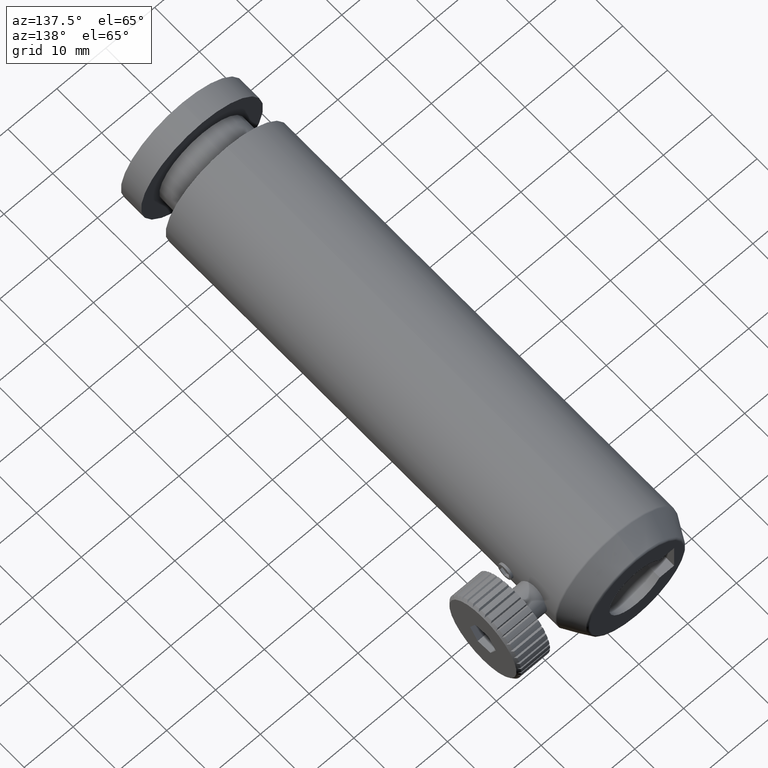
[diagram: clean part render]
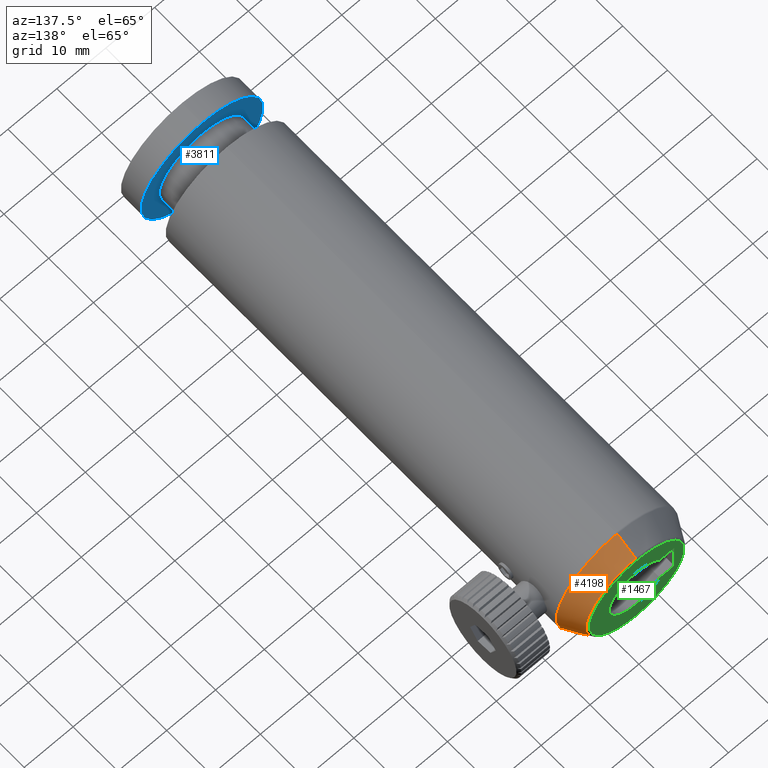
[diagram: same view with three faces highlighted in distinct colors, each labeled with its STEP entity id]
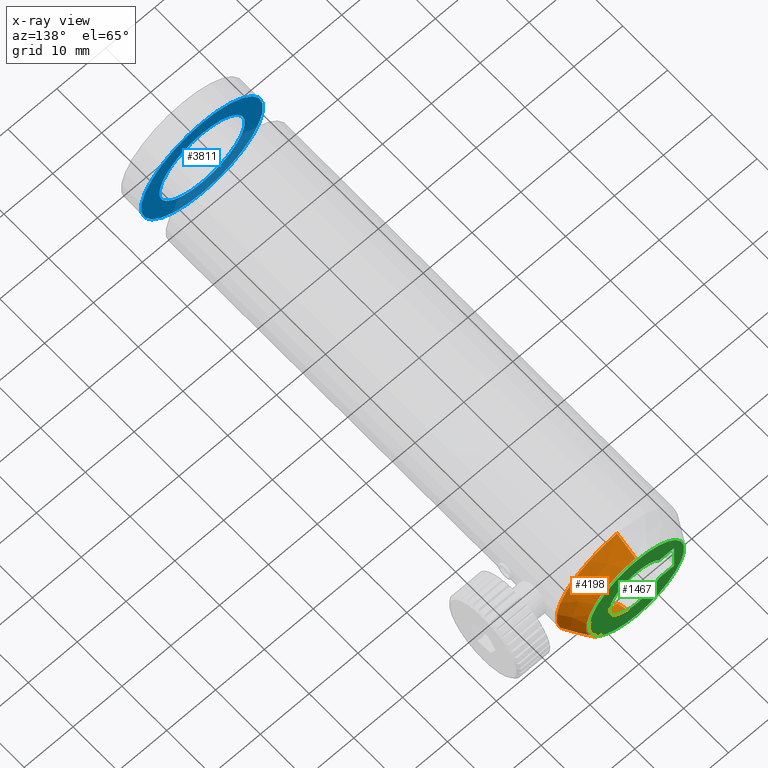
[diagram: x-ray of the same camera — body ghosted, the three highlighted faces saturated]
A machine part, auxiliary view with three faces highlighted in distinct colors.
The next image is the same camera in x-ray (body ghosted, the three faces saturated) — at least one of them is partly hidden behind the body in this view.
Their STEP definitions:

[orange] entity #4198 — the highlighted conical surface has half-angle 29.055 deg.
#25 = VERTEX_POINT ( 'NONE', #467 ) ;
#282 = CIRCLE ( 'NONE', #2136, 10.14287696356149300 ) ;
#289 = DIRECTION ( 'NONE',  ( 0.0000000000000000000, 0.0000000000000000000, -1.000000000000000000 ) ) ;
#369 = DIRECTION ( 'NONE',  ( 0.0000000000000000000, -0.8741572761215180600, -0.4856429311786675800 ) ) ;
#467 = CARTESIAN_POINT ( 'NONE',  ( -3.891022268973183300, 85.02920940597950100, 9.142876963561493000 ) ) ;
#726 = VERTEX_POINT ( 'NONE', #3298 ) ;
#873 = ORIENTED_EDGE ( 'NONE', *, *, #1209, .F. ) ;
#1003 = AXIS2_PLACEMENT_3D ( 'NONE', #4512, #2061, #2853 ) ;
#1035 = VERTEX_POINT ( 'NONE', #2015 ) ;
#1209 = EDGE_CURVE ( 'NONE', #1440, #726, #1876, .T. ) ;
#1440 = VERTEX_POINT ( 'NONE', #2731 ) ;
#1662 = ORIENTED_EDGE ( 'NONE', *, *, #1962, .T. ) ;
#1813 = EDGE_CURVE ( 'NONE', #25, #726, #4892, .T. ) ;
#1828 = DIRECTION ( 'NONE',  ( 5.947410611964935900E-017, -0.8741572761215180600, 0.4856429311786675800 ) ) ;
#1876 = CIRCLE ( 'NONE', #1003, 12.43707863806093500 ) ;
#1962 = EDGE_CURVE ( 'NONE', #1035, #25, #282, .T. ) ;
#2015 = CARTESIAN_POINT ( 'NONE',  ( -3.891022268973185000, 85.02920940597950100, -11.14287696356149500 ) ) ;
#2061 = DIRECTION ( 'NONE',  ( -0.0000000000000000000, -1.000000000000000000, -0.0000000000000000000 ) ) ;
#2136 = AXIS2_PLACEMENT_3D ( 'NONE', #3548, #2407, #289 ) ;
#2407 = DIRECTION ( 'NONE',  ( -0.0000000000000000000, -1.000000000000000000, -0.0000000000000000000 ) ) ;
#2643 = AXIS2_PLACEMENT_3D ( 'NONE', #4759, #5173, #2735 ) ;
#2731 = CARTESIAN_POINT ( 'NONE',  ( -3.891022268973185000, 80.89964639188089300, -13.43707863806093500 ) ) ;
#2735 = DIRECTION ( 'NONE',  ( 0.0000000000000000000, 0.0000000000000000000, -1.000000000000000000 ) ) ;
#2830 = ORIENTED_EDGE ( 'NONE', *, *, #4318, .F. ) ;
#2853 = DIRECTION ( 'NONE',  ( 0.0000000000000000000, 0.0000000000000000000, -1.000000000000000000 ) ) ;
#2921 = VECTOR ( 'NONE', #369, 1000.000000000000000 ) ;
#3035 = CARTESIAN_POINT ( 'NONE',  ( -3.891022268973183700, 85.02920940597950100, 9.142876963561493000 ) ) ;
#3229 = CONICAL_SURFACE ( 'NONE', #2643, 10.14287696356149300, 0.5070985043923775800 ) ;
#3252 = EDGE_LOOP ( 'NONE', ( #1662, #3778, #873, #2830 ) ) ;
#3298 = CARTESIAN_POINT ( 'NONE',  ( -3.891022268973183300, 80.89964639188089300, 11.43707863806093300 ) ) ;
#3548 = CARTESIAN_POINT ( 'NONE',  ( -3.891022268973185000, 85.02920940597950100, -1.000000000000000000 ) ) ;
#3599 = FACE_OUTER_BOUND ( 'NONE', #3252, .T. ) ;
#3778 = ORIENTED_EDGE ( 'NONE', *, *, #1813, .T. ) ;
#3911 = VECTOR ( 'NONE', #1828, 1000.000000000000000 ) ;
#4198 = ADVANCED_FACE ( 'NONE', ( #3599 ), #3229, .T. ) ;
#4318 = EDGE_CURVE ( 'NONE', #1035, #1440, #4571, .T. ) ;
#4425 = CARTESIAN_POINT ( 'NONE',  ( -3.891022268973185000, 85.02920940597950100, -11.14287696356149500 ) ) ;
#4512 = CARTESIAN_POINT ( 'NONE',  ( -3.891022268973185000, 80.89964639188089300, -1.000000000000000000 ) ) ;
#4571 = LINE ( 'NONE', #4425, #2921 ) ;
#4759 = CARTESIAN_POINT ( 'NONE',  ( -3.891022268973185000, 85.02920940597950100, -1.000000000000000000 ) ) ;
#4892 = LINE ( 'NONE', #3035, #3911 ) ;
#5173 = DIRECTION ( 'NONE',  ( -0.0000000000000000000, -1.000000000000000000, -0.0000000000000000000 ) ) ;

[blue] entity #3811 — the highlighted planar face has unit normal (0, -1, -0).
#144 = VERTEX_POINT ( 'NONE', #3842 ) ;
#172 = DIRECTION ( 'NONE',  ( 0.0000000000000000000, 0.0000000000000000000, -1.000000000000000000 ) ) ;
#385 = CARTESIAN_POINT ( 'NONE',  ( -3.891022268973183300, -11.81361205960983300, 11.50000000000000000 ) ) ;
#547 = VERTEX_POINT ( 'NONE', #2540 ) ;
#636 = EDGE_LOOP ( 'NONE', ( #4018, #4740 ) ) ;
#653 = ORIENTED_EDGE ( 'NONE', *, *, #5152, .T. ) ;
#789 = EDGE_CURVE ( 'NONE', #2065, #144, #983, .T. ) ;
#972 = DIRECTION ( 'NONE',  ( -0.0000000000000000000, -1.000000000000000000, -0.0000000000000000000 ) ) ;
#983 = CIRCLE ( 'NONE', #3731, 12.50000000000000000 ) ;
#1020 = EDGE_LOOP ( 'NONE', ( #1941, #653 ) ) ;
#1056 = CIRCLE ( 'NONE', #3874, 8.750000000000000000 ) ;
#1362 = DIRECTION ( 'NONE',  ( -0.0000000000000000000, -1.000000000000000000, -0.0000000000000000000 ) ) ;
#1434 = DIRECTION ( 'NONE',  ( 0.0000000000000000000, 0.0000000000000000000, -1.000000000000000000 ) ) ;
#1448 = CARTESIAN_POINT ( 'NONE',  ( -12.64102226897318600, -11.81361205960983300, -1.000000000000000000 ) ) ;
#1509 = DIRECTION ( 'NONE',  ( -0.0000000000000000000, -1.000000000000000000, -0.0000000000000000000 ) ) ;
#1601 = AXIS2_PLACEMENT_3D ( 'NONE', #2241, #3864, #1434 ) ;
#1887 = EDGE_CURVE ( 'NONE', #4213, #547, #2559, .T. ) ;
#1941 = ORIENTED_EDGE ( 'NONE', *, *, #1887, .T. ) ;
#2065 = VERTEX_POINT ( 'NONE', #385 ) ;
#2219 = DIRECTION ( 'NONE',  ( 0.0000000000000000000, 0.0000000000000000000, -1.000000000000000000 ) ) ;
#2241 = CARTESIAN_POINT ( 'NONE',  ( -3.891022268973185000, -11.81361205960983300, -1.000000000000000000 ) ) ;
#2540 = CARTESIAN_POINT ( 'NONE',  ( -3.891022268973184200, -11.81361205960983300, 7.750000000000000900 ) ) ;
#2559 = CIRCLE ( 'NONE', #1601, 8.750000000000000000 ) ;
#2592 = PLANE ( 'NONE',  #4144 ) ;
#2598 = CARTESIAN_POINT ( 'NONE',  ( -3.891022268973185000, -11.81361205960983300, -1.000000000000000000 ) ) ;
#2676 = DIRECTION ( 'NONE',  ( 0.0000000000000000000, -1.000000000000000000, -0.0000000000000000000 ) ) ;
#2826 = AXIS2_PLACEMENT_3D ( 'NONE', #2598, #1362, #172 ) ;
#3108 = CARTESIAN_POINT ( 'NONE',  ( -3.891022268973185000, -11.81361205960983300, -1.000000000000000000 ) ) ;
#3731 = AXIS2_PLACEMENT_3D ( 'NONE', #3853, #972, #5073 ) ;
#3811 = ADVANCED_FACE ( 'NONE', ( #5108, #4187 ), #2592, .F. ) ;
#3842 = CARTESIAN_POINT ( 'NONE',  ( -3.891022268973185000, -11.81361205960983300, -13.50000000000000200 ) ) ;
#3853 = CARTESIAN_POINT ( 'NONE',  ( -3.891022268973185000, -11.81361205960983300, -1.000000000000000000 ) ) ;
#3856 = CIRCLE ( 'NONE', #2826, 12.50000000000000000 ) ;
#3864 = DIRECTION ( 'NONE',  ( -0.0000000000000000000, -1.000000000000000000, -0.0000000000000000000 ) ) ;
#3874 = AXIS2_PLACEMENT_3D ( 'NONE', #3108, #1509, #4337 ) ;
#3940 = CARTESIAN_POINT ( 'NONE',  ( -3.891022268973185000, -11.81361205960983300, -9.750000000000001800 ) ) ;
#4018 = ORIENTED_EDGE ( 'NONE', *, *, #4643, .F. ) ;
#4144 = AXIS2_PLACEMENT_3D ( 'NONE', #1448, #2676, #2219 ) ;
#4187 = FACE_BOUND ( 'NONE', #1020, .T. ) ;
#4213 = VERTEX_POINT ( 'NONE', #3940 ) ;
#4337 = DIRECTION ( 'NONE',  ( 0.0000000000000000000, 0.0000000000000000000, -1.000000000000000000 ) ) ;
#4643 = EDGE_CURVE ( 'NONE', #144, #2065, #3856, .T. ) ;
#4740 = ORIENTED_EDGE ( 'NONE', *, *, #789, .F. ) ;
#5073 = DIRECTION ( 'NONE',  ( 0.0000000000000000000, 0.0000000000000000000, -1.000000000000000000 ) ) ;
#5108 = FACE_OUTER_BOUND ( 'NONE', #636, .T. ) ;
#5152 = EDGE_CURVE ( 'NONE', #547, #4213, #1056, .T. ) ;

[green] entity #1467 — the highlighted planar face has unit normal (0, -1, -0).
#210 = EDGE_CURVE ( 'NONE', #1658, #1096, #4229, .T. ) ;
#255 = CARTESIAN_POINT ( 'NONE',  ( -3.891022268973184200, 85.28638794039015600, 4.596650784174404000 ) ) ;
#301 = CIRCLE ( 'NONE', #4115, 9.705798325500731800 ) ;
#543 = LINE ( 'NONE', #3133, #3279 ) ;
#552 = ORIENTED_EDGE ( 'NONE', *, *, #956, .T. ) ;
#651 = CIRCLE ( 'NONE', #1834, 5.596650784174404000 ) ;
#741 = CIRCLE ( 'NONE', #5266, 5.596650784174404000 ) ;
#744 = CARTESIAN_POINT ( 'NONE',  ( -11.53767305314758900, 85.28638794039015600, 2.125000000000000400 ) ) ;
#834 = CARTESIAN_POINT ( 'NONE',  ( -11.53767305314758900, 85.28638794039015600, -4.125000000000000000 ) ) ;
#864 = LINE ( 'NONE', #1154, #3980 ) ;
#910 = FACE_OUTER_BOUND ( 'NONE', #2272, .T. ) ;
#933 = LINE ( 'NONE', #4787, #4110 ) ;
#956 = EDGE_CURVE ( 'NONE', #2520, #3420, #1436, .T. ) ;
#1088 = CARTESIAN_POINT ( 'NONE',  ( -8.584248614269817800, 85.28638794039015600, 2.125000000000000400 ) ) ;
#1096 = VERTEX_POINT ( 'NONE', #744 ) ;
#1099 = VECTOR ( 'NONE', #2367, 1000.000000000000000 ) ;
#1106 = CARTESIAN_POINT ( 'NONE',  ( -8.584248614269817800, 85.28638794039015600, -4.125000000000000000 ) ) ;
#1154 = CARTESIAN_POINT ( 'NONE',  ( -8.584248614269817800, 85.28638794039015600, -4.125000000000000000 ) ) ;
#1422 = DIRECTION ( 'NONE',  ( -0.0000000000000000000, -1.000000000000000000, -0.0000000000000000000 ) ) ;
#1436 = CIRCLE ( 'NONE', #4378, 5.596650784174404000 ) ;
#1443 = VERTEX_POINT ( 'NONE', #1088 ) ;
#1467 = ADVANCED_FACE ( 'NONE', ( #910, #2248 ), #4731, .F. ) ;
#1529 = AXIS2_PLACEMENT_3D ( 'NONE', #3583, #4015, #4362 ) ;
#1658 = VERTEX_POINT ( 'NONE', #4437 ) ;
#1743 = ORIENTED_EDGE ( 'NONE', *, *, #4580, .F. ) ;
#1807 = DIRECTION ( 'NONE',  ( 0.0000000000000000000, 0.0000000000000000000, -1.000000000000000000 ) ) ;
#1834 = AXIS2_PLACEMENT_3D ( 'NONE', #2538, #2575, #2182 ) ;
#1929 = VERTEX_POINT ( 'NONE', #1106 ) ;
#1961 = DIRECTION ( 'NONE',  ( -0.0000000000000000000, -0.0000000000000000000, -1.000000000000000000 ) ) ;
#1966 = EDGE_CURVE ( 'NONE', #4305, #3203, #4680, .T. ) ;
#2001 = VERTEX_POINT ( 'NONE', #3225 ) ;
#2013 = CARTESIAN_POINT ( 'NONE',  ( -3.891022268973183700, 85.28638794039015600, 8.705798325500735400 ) ) ;
#2032 = CARTESIAN_POINT ( 'NONE',  ( -3.891022268973185000, 85.28638794039015600, -6.596650784174404000 ) ) ;
#2044 = ORIENTED_EDGE ( 'NONE', *, *, #2744, .T. ) ;
#2053 = DIRECTION ( 'NONE',  ( 0.0000000000000000000, 0.0000000000000000000, 1.000000000000000000 ) ) ;
#2182 = DIRECTION ( 'NONE',  ( 0.0000000000000000000, 0.0000000000000000000, -1.000000000000000000 ) ) ;
#2248 = FACE_BOUND ( 'NONE', #4351, .T. ) ;
#2253 = CARTESIAN_POINT ( 'NONE',  ( -3.891022268973185000, 85.28638794039015600, -1.000000000000000000 ) ) ;
#2272 = EDGE_LOOP ( 'NONE', ( #1743, #4910 ) ) ;
#2291 = CARTESIAN_POINT ( 'NONE',  ( -3.891022268973185000, 85.28638794039015600, -1.000000000000000000 ) ) ;
#2323 = DIRECTION ( 'NONE',  ( 1.000000000000000000, 0.0000000000000000000, 0.0000000000000000000 ) ) ;
#2367 = DIRECTION ( 'NONE',  ( -1.000000000000000000, -0.0000000000000000000, -0.0000000000000000000 ) ) ;
#2489 = EDGE_CURVE ( 'NONE', #1929, #1658, #3258, .T. ) ;
#2520 = VERTEX_POINT ( 'NONE', #2032 ) ;
#2538 = CARTESIAN_POINT ( 'NONE',  ( -3.891022268973185000, 85.28638794039015600, -1.000000000000000000 ) ) ;
#2575 = DIRECTION ( 'NONE',  ( -0.0000000000000000000, -1.000000000000000000, -0.0000000000000000000 ) ) ;
#2696 = CARTESIAN_POINT ( 'NONE',  ( -3.891022268973185000, 85.28638794039015600, -10.70579832550073400 ) ) ;
#2742 = ORIENTED_EDGE ( 'NONE', *, *, #4919, .T. ) ;
#2744 = EDGE_CURVE ( 'NONE', #2977, #2520, #651, .T. ) ;
#2977 = VERTEX_POINT ( 'NONE', #3537 ) ;
#3089 = ORIENTED_EDGE ( 'NONE', *, *, #3116, .F. ) ;
#3116 = EDGE_CURVE ( 'NONE', #1443, #2001, #864, .T. ) ;
#3133 = CARTESIAN_POINT ( 'NONE',  ( -8.584248614269817800, 85.28638794039015600, -1.000000000000000000 ) ) ;
#3155 = EDGE_CURVE ( 'NONE', #3420, #2001, #741, .T. ) ;
#3203 = VERTEX_POINT ( 'NONE', #2696 ) ;
#3225 = CARTESIAN_POINT ( 'NONE',  ( -8.584248614269817800, 85.28638794039015600, 2.048954980286454800 ) ) ;
#3258 = LINE ( 'NONE', #5149, #1099 ) ;
#3279 = VECTOR ( 'NONE', #4001, 1000.000000000000000 ) ;
#3398 = DIRECTION ( 'NONE',  ( -0.0000000000000000000, -1.000000000000000000, -0.0000000000000000000 ) ) ;
#3420 = VERTEX_POINT ( 'NONE', #255 ) ;
#3537 = CARTESIAN_POINT ( 'NONE',  ( -8.584248614269817800, 85.28638794039015600, -4.048954980286454800 ) ) ;
#3583 = CARTESIAN_POINT ( 'NONE',  ( -3.891022268973185000, 85.28638794039015600, -1.000000000000000000 ) ) ;
#3920 = VECTOR ( 'NONE', #2053, 1000.000000000000000 ) ;
#3938 = DIRECTION ( 'NONE',  ( 0.0000000000000000000, 0.0000000000000000000, -1.000000000000000000 ) ) ;
#3980 = VECTOR ( 'NONE', #1961, 1000.000000000000000 ) ;
#4001 = DIRECTION ( 'NONE',  ( 0.0000000000000000000, 0.0000000000000000000, 1.000000000000000000 ) ) ;
#4007 = ORIENTED_EDGE ( 'NONE', *, *, #210, .F. ) ;
#4015 = DIRECTION ( 'NONE',  ( -0.0000000000000000000, -1.000000000000000000, -0.0000000000000000000 ) ) ;
#4110 = VECTOR ( 'NONE', #2323, 1000.000000000000000 ) ;
#4115 = AXIS2_PLACEMENT_3D ( 'NONE', #5054, #3398, #1807 ) ;
#4229 = LINE ( 'NONE', #834, #3920 ) ;
#4305 = VERTEX_POINT ( 'NONE', #2013 ) ;
#4351 = EDGE_LOOP ( 'NONE', ( #4880, #2742, #2044, #552, #4602, #3089, #4953, #4007 ) ) ;
#4362 = DIRECTION ( 'NONE',  ( 0.0000000000000000000, 0.0000000000000000000, -1.000000000000000000 ) ) ;
#4378 = AXIS2_PLACEMENT_3D ( 'NONE', #2291, #4739, #5174 ) ;
#4382 = CARTESIAN_POINT ( 'NONE',  ( -9.487673053147588600, 85.28638794039015600, -1.000000000000000000 ) ) ;
#4437 = CARTESIAN_POINT ( 'NONE',  ( -11.53767305314758900, 85.28638794039015600, -4.125000000000000000 ) ) ;
#4580 = EDGE_CURVE ( 'NONE', #3203, #4305, #301, .T. ) ;
#4586 = AXIS2_PLACEMENT_3D ( 'NONE', #4382, #4807, #3938 ) ;
#4602 = ORIENTED_EDGE ( 'NONE', *, *, #3155, .T. ) ;
#4680 = CIRCLE ( 'NONE', #1529, 9.705798325500731800 ) ;
#4731 = PLANE ( 'NONE',  #4586 ) ;
#4739 = DIRECTION ( 'NONE',  ( -0.0000000000000000000, -1.000000000000000000, -0.0000000000000000000 ) ) ;
#4780 = EDGE_CURVE ( 'NONE', #1096, #1443, #933, .T. ) ;
#4787 = CARTESIAN_POINT ( 'NONE',  ( -11.53767305314758900, 85.28638794039015600, 2.125000000000000400 ) ) ;
#4807 = DIRECTION ( 'NONE',  ( 0.0000000000000000000, -1.000000000000000000, -0.0000000000000000000 ) ) ;
#4880 = ORIENTED_EDGE ( 'NONE', *, *, #2489, .F. ) ;
#4910 = ORIENTED_EDGE ( 'NONE', *, *, #1966, .F. ) ;
#4919 = EDGE_CURVE ( 'NONE', #1929, #2977, #543, .T. ) ;
#4953 = ORIENTED_EDGE ( 'NONE', *, *, #4780, .F. ) ;
#5054 = CARTESIAN_POINT ( 'NONE',  ( -3.891022268973185000, 85.28638794039015600, -1.000000000000000000 ) ) ;
#5149 = CARTESIAN_POINT ( 'NONE',  ( -11.53767305314758900, 85.28638794039015600, -4.125000000000000000 ) ) ;
#5170 = DIRECTION ( 'NONE',  ( 0.0000000000000000000, 0.0000000000000000000, -1.000000000000000000 ) ) ;
#5174 = DIRECTION ( 'NONE',  ( 0.0000000000000000000, 0.0000000000000000000, -1.000000000000000000 ) ) ;
#5266 = AXIS2_PLACEMENT_3D ( 'NONE', #2253, #1422, #5170 ) ;